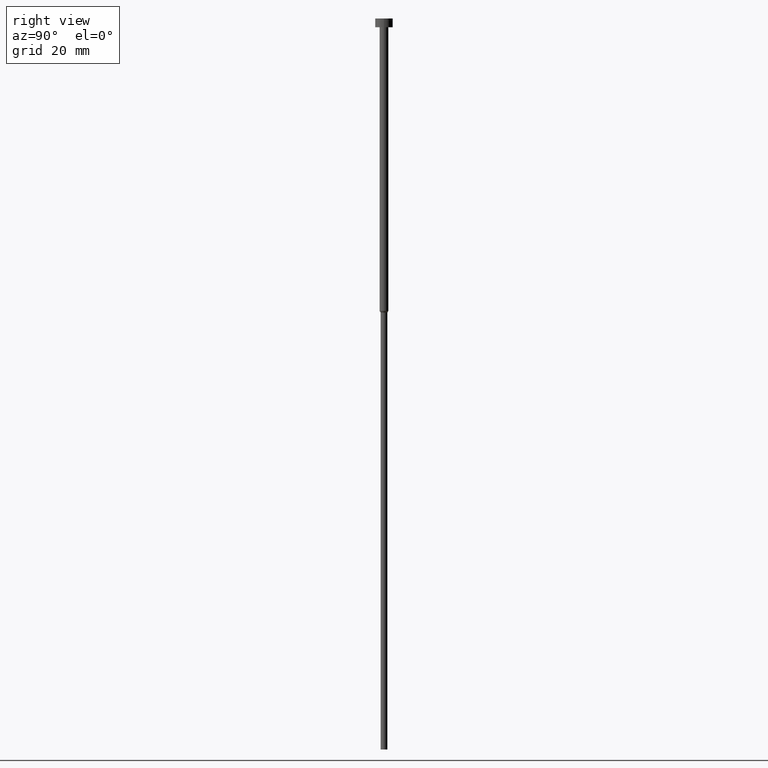
[diagram: clean part render]
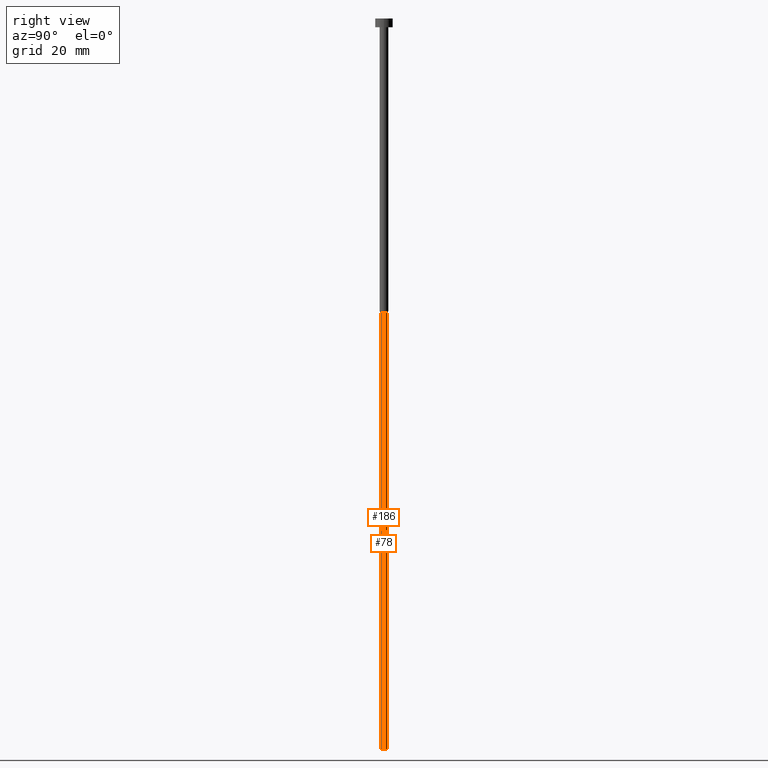
[diagram: same view with one multi-face feature highlighted, each face labeled with its STEP entity id]
A machine part, right view. The highlighted faces form ONE feature: a constant-radius fillet chain: 2 tangent blend faces with common blend radius 1.15 mm. The faces share edges in the B-rep.
Their STEP definitions:
[1] entity #186 (Cylinder):
#4 = DIRECTION ( 'NONE',  ( 1.000000000000000000, 0.000000000000000000, 0.000000000000000000 ) ) ;
#7 = EDGE_CURVE ( 'NONE', #235, #130, #240, .T. ) ;
#15 = AXIS2_PLACEMENT_3D ( 'NONE', #135, #355, #4 ) ;
#36 = LINE ( 'NONE', #168, #106 ) ;
#55 = CARTESIAN_POINT ( 'NONE',  ( 1.149999999999999911, 0.000000000000000000, -100.6062177826491109 ) ) ;
#75 = ORIENTED_EDGE ( 'NONE', *, *, #122, .T. ) ;
#76 = AXIS2_PLACEMENT_3D ( 'NONE', #188, #81, #333 ) ;
#81 = DIRECTION ( 'NONE',  ( -0.000000000000000000, -0.000000000000000000, 1.000000000000000000 ) ) ;
#95 = ORIENTED_EDGE ( 'NONE', *, *, #241, .F. ) ;
#103 = ORIENTED_EDGE ( 'NONE', *, *, #7, .T. ) ;
#106 = VECTOR ( 'NONE', #116, 1000.000000000000000 ) ;
#116 = DIRECTION ( 'NONE',  ( -0.000000000000000000, -0.000000000000000000, 1.000000000000000000 ) ) ;
#119 = CARTESIAN_POINT ( 'NONE',  ( -1.149999999999999911, 1.408343819019456028E-16, -250.0000000000000000 ) ) ;
#122 = EDGE_CURVE ( 'NONE', #322, #235, #170, .T. ) ;
#128 = CIRCLE ( 'NONE', #304, 1.149999999999999911 ) ;
#130 = VERTEX_POINT ( 'NONE', #55 ) ;
#135 = CARTESIAN_POINT ( 'NONE',  ( 0.000000000000000000, 0.000000000000000000, -250.0000000000000000 ) ) ;
#145 = DIRECTION ( 'NONE',  ( 1.000000000000000000, 0.000000000000000000, 0.000000000000000000 ) ) ;
#152 = VECTOR ( 'NONE', #349, 1000.000000000000000 ) ;
#168 = CARTESIAN_POINT ( 'NONE',  ( -1.149999999999999911, 1.408343819019456028E-16, 0.000000000000000000 ) ) ;
#169 = CARTESIAN_POINT ( 'NONE',  ( 0.000000000000000000, 0.000000000000000000, -100.6062177826491109 ) ) ;
#170 = CIRCLE ( 'NONE', #15, 1.149999999999999911 ) ;
#181 = CARTESIAN_POINT ( 'NONE',  ( 1.149999999999999911, 0.000000000000000000, 0.000000000000000000 ) ) ;
#186 = ADVANCED_FACE ( 'NONE', ( #187 ), #295, .T. ) ;
#187 = FACE_OUTER_BOUND ( 'NONE', #344, .T. ) ;
#188 = CARTESIAN_POINT ( 'NONE',  ( 0.000000000000000000, 0.000000000000000000, 0.000000000000000000 ) ) ;
#202 = DIRECTION ( 'NONE',  ( -0.000000000000000000, -0.000000000000000000, 1.000000000000000000 ) ) ;
#235 = VERTEX_POINT ( 'NONE', #306 ) ;
#237 = VERTEX_POINT ( 'NONE', #338 ) ;
#240 = LINE ( 'NONE', #181, #152 ) ;
#241 = EDGE_CURVE ( 'NONE', #322, #237, #36, .T. ) ;
#295 = CYLINDRICAL_SURFACE ( 'NONE', #76, 1.149999999999999911 ) ;
#304 = AXIS2_PLACEMENT_3D ( 'NONE', #169, #202, #145 ) ;
#306 = CARTESIAN_POINT ( 'NONE',  ( 1.149999999999999911, 0.000000000000000000, -250.0000000000000000 ) ) ;
#311 = ORIENTED_EDGE ( 'NONE', *, *, #352, .F. ) ;
#322 = VERTEX_POINT ( 'NONE', #119 ) ;
#333 = DIRECTION ( 'NONE',  ( 1.000000000000000000, 0.000000000000000000, 0.000000000000000000 ) ) ;
#338 = CARTESIAN_POINT ( 'NONE',  ( -1.149999999999999911, 1.408343819019456028E-16, -100.6062177826491109 ) ) ;
#344 = EDGE_LOOP ( 'NONE', ( #95, #75, #103, #311 ) ) ;
#349 = DIRECTION ( 'NONE',  ( -0.000000000000000000, -0.000000000000000000, 1.000000000000000000 ) ) ;
#352 = EDGE_CURVE ( 'NONE', #237, #130, #128, .T. ) ;
#355 = DIRECTION ( 'NONE',  ( -0.000000000000000000, -0.000000000000000000, 1.000000000000000000 ) ) ;
[2] entity #78 (Cylinder):
#7 = EDGE_CURVE ( 'NONE', #235, #130, #240, .T. ) ;
#24 = ORIENTED_EDGE ( 'NONE', *, *, #241, .T. ) ;
#26 = EDGE_LOOP ( 'NONE', ( #324, #24, #71, #288 ) ) ;
#30 = DIRECTION ( 'NONE',  ( -0.000000000000000000, -0.000000000000000000, 1.000000000000000000 ) ) ;
#36 = LINE ( 'NONE', #168, #106 ) ;
#54 = FACE_OUTER_BOUND ( 'NONE', #26, .T. ) ;
#55 = CARTESIAN_POINT ( 'NONE',  ( 1.149999999999999911, 0.000000000000000000, -100.6062177826491109 ) ) ;
#71 = ORIENTED_EDGE ( 'NONE', *, *, #207, .F. ) ;
#78 = ADVANCED_FACE ( 'NONE', ( #54 ), #243, .T. ) ;
#83 = CIRCLE ( 'NONE', #256, 1.149999999999999911 ) ;
#104 = CARTESIAN_POINT ( 'NONE',  ( 0.000000000000000000, 0.000000000000000000, 0.000000000000000000 ) ) ;
#106 = VECTOR ( 'NONE', #116, 1000.000000000000000 ) ;
#108 = DIRECTION ( 'NONE',  ( 1.000000000000000000, 0.000000000000000000, 0.000000000000000000 ) ) ;
#116 = DIRECTION ( 'NONE',  ( -0.000000000000000000, -0.000000000000000000, 1.000000000000000000 ) ) ;
#119 = CARTESIAN_POINT ( 'NONE',  ( -1.149999999999999911, 1.408343819019456028E-16, -250.0000000000000000 ) ) ;
#130 = VERTEX_POINT ( 'NONE', #55 ) ;
#140 = DIRECTION ( 'NONE',  ( -0.000000000000000000, -0.000000000000000000, 1.000000000000000000 ) ) ;
#152 = VECTOR ( 'NONE', #349, 1000.000000000000000 ) ;
#164 = AXIS2_PLACEMENT_3D ( 'NONE', #104, #30, #108 ) ;
#168 = CARTESIAN_POINT ( 'NONE',  ( -1.149999999999999911, 1.408343819019456028E-16, 0.000000000000000000 ) ) ;
#181 = CARTESIAN_POINT ( 'NONE',  ( 1.149999999999999911, 0.000000000000000000, 0.000000000000000000 ) ) ;
#207 = EDGE_CURVE ( 'NONE', #130, #237, #83, .T. ) ;
#235 = VERTEX_POINT ( 'NONE', #306 ) ;
#237 = VERTEX_POINT ( 'NONE', #338 ) ;
#240 = LINE ( 'NONE', #181, #152 ) ;
#241 = EDGE_CURVE ( 'NONE', #322, #237, #36, .T. ) ;
#243 = CYLINDRICAL_SURFACE ( 'NONE', #164, 1.149999999999999911 ) ;
#249 = DIRECTION ( 'NONE',  ( -0.000000000000000000, -0.000000000000000000, 1.000000000000000000 ) ) ;
#253 = CARTESIAN_POINT ( 'NONE',  ( 0.000000000000000000, 0.000000000000000000, -250.0000000000000000 ) ) ;
#256 = AXIS2_PLACEMENT_3D ( 'NONE', #275, #140, #280 ) ;
#275 = CARTESIAN_POINT ( 'NONE',  ( 0.000000000000000000, 0.000000000000000000, -100.6062177826491109 ) ) ;
#279 = CIRCLE ( 'NONE', #286, 1.149999999999999911 ) ;
#280 = DIRECTION ( 'NONE',  ( 1.000000000000000000, 0.000000000000000000, 0.000000000000000000 ) ) ;
#286 = AXIS2_PLACEMENT_3D ( 'NONE', #253, #249, #341 ) ;
#288 = ORIENTED_EDGE ( 'NONE', *, *, #7, .F. ) ;
#294 = EDGE_CURVE ( 'NONE', #235, #322, #279, .T. ) ;
#306 = CARTESIAN_POINT ( 'NONE',  ( 1.149999999999999911, 0.000000000000000000, -250.0000000000000000 ) ) ;
#322 = VERTEX_POINT ( 'NONE', #119 ) ;
#324 = ORIENTED_EDGE ( 'NONE', *, *, #294, .T. ) ;
#338 = CARTESIAN_POINT ( 'NONE',  ( -1.149999999999999911, 1.408343819019456028E-16, -100.6062177826491109 ) ) ;
#341 = DIRECTION ( 'NONE',  ( 1.000000000000000000, 0.000000000000000000, 0.000000000000000000 ) ) ;
#349 = DIRECTION ( 'NONE',  ( -0.000000000000000000, -0.000000000000000000, 1.000000000000000000 ) ) ;